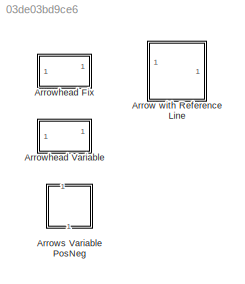
MODEL slx_03de03bd9ce6
KIND library
CONFIG SolverName = VariableStepAuto
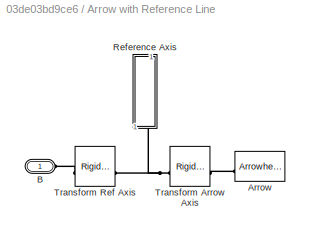
BLOCK [SubSystem] Arrow with Reference Line
BLOCK [Reference] Arrow with Reference Line/Arrow  REF=$bdroot/Arrowhead Fix
  SourceBlock = $bdroot/Arrowhead Fix
BLOCK [PMIOPort] Arrow with Reference Line/B
  Side = Left
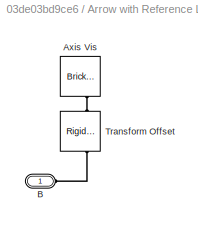
BLOCK [SubSystem] Arrow with Reference Line/Reference Axis
  NameLocation = right
BLOCK [Reference] Arrow with Reference Line/Reference Axis/Axis Vis  REF=sm_lib/Body Elements/Brick Solid
  NameLocation = left
  SourceBlock = sm_lib/Body Elements/Brick Solid
  SourceType = Brick Solid
BLOCK [PMIOPort] Arrow with Reference Line/Reference Axis/B
  Side = Left
BLOCK [Reference] Arrow with Reference Line/Reference Axis/Transform Offset  REF=sm_lib/Frames and
Transforms/Rigid
Transform
  NameLocation = left
  SourceBlock = sm_lib/Frames and\nTransforms/Rigid\nTransform
  SourceType = Rigid\nTransform
BLOCK [Reference] Arrow with Reference Line/Transform Arrow Axis  REF=sm_lib/Frames and
Transforms/Rigid
Transform
  SourceBlock = sm_lib/Frames and\nTransforms/Rigid\nTransform
  SourceType = Rigid\nTransform
BLOCK [Reference] Arrow with Reference Line/Transform Ref Axis  REF=sm_lib/Frames and
Transforms/Rigid
Transform
  SourceBlock = sm_lib/Frames and\nTransforms/Rigid\nTransform
  SourceType = Rigid\nTransform
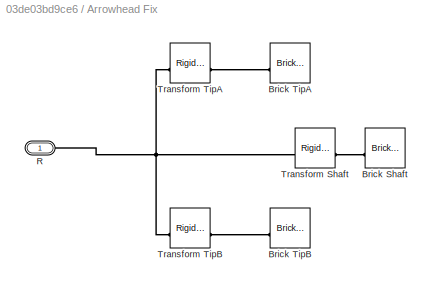
BLOCK [SubSystem] Arrowhead Fix
BLOCK [Reference] Arrowhead Fix/Brick Shaft  REF=sm_lib/Body Elements/Brick Solid
  SourceBlock = sm_lib/Body Elements/Brick Solid
  SourceType = Brick Solid
BLOCK [Reference] Arrowhead Fix/Brick TipA  REF=sm_lib/Body Elements/Brick Solid
  SourceBlock = sm_lib/Body Elements/Brick Solid
  SourceType = Brick Solid
BLOCK [Reference] Arrowhead Fix/Brick TipB  REF=sm_lib/Body Elements/Brick Solid
  SourceBlock = sm_lib/Body Elements/Brick Solid
  SourceType = Brick Solid
BLOCK [PMIOPort] Arrowhead Fix/R
  Side = Right
BLOCK [Reference] Arrowhead Fix/Transform Shaft  REF=sm_lib/Frames and
Transforms/Rigid
Transform
  SourceBlock = sm_lib/Frames and\nTransforms/Rigid\nTransform
  SourceType = Rigid\nTransform
BLOCK [Reference] Arrowhead Fix/Transform TipA  REF=sm_lib/Frames and
Transforms/Rigid
Transform
  SourceBlock = sm_lib/Frames and\nTransforms/Rigid\nTransform
  SourceType = Rigid\nTransform
BLOCK [Reference] Arrowhead Fix/Transform TipB  REF=sm_lib/Frames and
Transforms/Rigid
Transform
  SourceBlock = sm_lib/Frames and\nTransforms/Rigid\nTransform
  SourceType = Rigid\nTransform
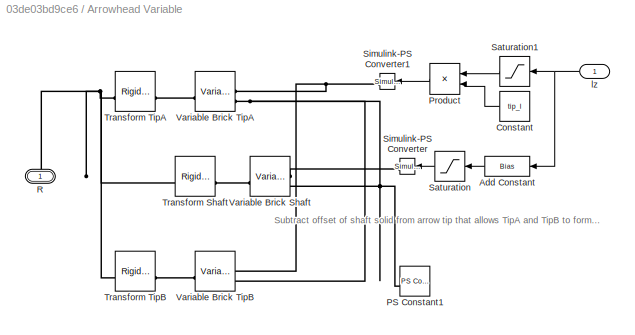
BLOCK [SubSystem] Arrowhead Variable
BLOCK [Bias] Arrowhead Variable/Add Constant
  Bias = -(line_width/2)/tand(tip_a/2)
  SaturateOnIntegerOverflow = off
BLOCK [Constant] Arrowhead Variable/Constant
  Value = tip_l
BLOCK [Reference] Arrowhead Variable/PS Constant1  REF=fl_lib/Physical Signals/Sources/PS Constant
  SourceBlock = fl_lib/Physical Signals/Sources/PS Constant
  SourceType = PS Constant
BLOCK [Product] Arrowhead Variable/Product
BLOCK [PMIOPort] Arrowhead Variable/R
  Side = Right
BLOCK [Saturate] Arrowhead Variable/Saturation
  LowerLimit = 1e-3
  NameLocation = top
  UpperLimit = Inf
  ZeroCross = off
BLOCK [Saturate] Arrowhead Variable/Saturation1
  LowerLimit = 1e-3
  NameLocation = top
  UpperLimit = 1
  ZeroCross = off
BLOCK [Reference] Arrowhead Variable/Simulink-PS Converter  REF=nesl_utility/Simulink-PS
Converter
  SourceBlock = nesl_utility/Simulink-PS\nConverter
  SourceType = Simulink-PS\nConverter
BLOCK [Reference] Arrowhead Variable/Simulink-PS Converter1  REF=nesl_utility/Simulink-PS
Converter
  SourceBlock = nesl_utility/Simulink-PS\nConverter
  SourceType = Simulink-PS\nConverter
BLOCK [Reference] Arrowhead Variable/Transform Shaft  REF=sm_lib/Frames and
Transforms/Rigid
Transform
  SourceBlock = sm_lib/Frames and\nTransforms/Rigid\nTransform
  SourceType = Rigid\nTransform
BLOCK [Reference] Arrowhead Variable/Transform TipA  REF=sm_lib/Frames and
Transforms/Rigid
Transform
  SourceBlock = sm_lib/Frames and\nTransforms/Rigid\nTransform
  SourceType = Rigid\nTransform
BLOCK [Reference] Arrowhead Variable/Transform TipB  REF=sm_lib/Frames and
Transforms/Rigid
Transform
  SourceBlock = sm_lib/Frames and\nTransforms/Rigid\nTransform
  SourceType = Rigid\nTransform
BLOCK [Reference] Arrowhead Variable/Variable Brick Shaft  REF=sm_lib/Body Elements/Variable Mass/Variable
Brick Solid
  SourceBlock = sm_lib/Body Elements/Variable Mass/Variable\nBrick Solid
  SourceType = Variable\nBrick Solid
BLOCK [Reference] Arrowhead Variable/Variable Brick TipA  REF=sm_lib/Body Elements/Variable Mass/Variable
Brick Solid
  SourceBlock = sm_lib/Body Elements/Variable Mass/Variable\nBrick Solid
  SourceType = Variable\nBrick Solid
BLOCK [Reference] Arrowhead Variable/Variable Brick TipB  REF=sm_lib/Body Elements/Variable Mass/Variable
Brick Solid
  SourceBlock = sm_lib/Body Elements/Variable Mass/Variable\nBrick Solid
  SourceType = Variable\nBrick Solid
BLOCK [Inport] Arrowhead Variable/lz
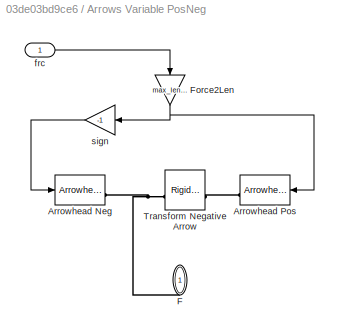
BLOCK [SubSystem] Arrows Variable PosNeg
  NameLocation = right
BLOCK [Reference] Arrows Variable PosNeg/Arrowhead Neg  REF=$bdroot/Arrowhead Variable
  SourceBlock = $bdroot/Arrowhead Variable
BLOCK [Reference] Arrows Variable PosNeg/Arrowhead Pos  REF=$bdroot/Arrowhead Variable
  SourceBlock = $bdroot/Arrowhead Variable
BLOCK [PMIOPort] Arrows Variable PosNeg/F
  NameLocation = right
  Side = Right
BLOCK [Gain] Arrows Variable PosNeg/Force2Len
  Gain = max_length/max_force
  NameLocation = left
BLOCK [Reference] Arrows Variable PosNeg/Transform Negative Arrow  REF=sm_lib/Frames and
Transforms/Rigid
Transform
  SourceBlock = sm_lib/Frames and\nTransforms/Rigid\nTransform
  SourceType = Rigid\nTransform
BLOCK [Inport] Arrows Variable PosNeg/frc
BLOCK [Gain] Arrows Variable PosNeg/sign
  Gain = -1
ANNOTATION Arrowhead Variable: Subtract offset of shaft solid from arrow tip that allows TipA and TipB to form a sharp point.
LINE Arrowhead Variable/Add Constant:1 -> Arrowhead Variable/Saturation:1
LINE Arrowhead Variable/Constant:1 -> Arrowhead Variable/Product:2
LINE Arrowhead Variable/Product:1 -> Arrowhead Variable/Simulink-PS Converter1:1
LINE Arrowhead Variable/Saturation1:1 -> Arrowhead Variable/Product:1
LINE Arrowhead Variable/Saturation:1 -> Arrowhead Variable/Simulink-PS Converter:1
NET Arrowhead Variable/lz:1 -> Arrowhead Variable/Add Constant:1, Arrowhead Variable/Saturation1:1
NET Arrows Variable PosNeg/Force2Len:1 -> Arrows Variable PosNeg/Arrowhead Pos:1, Arrows Variable PosNeg/sign:1
LINE Arrows Variable PosNeg/frc:1 -> Arrows Variable PosNeg/Force2Len:1
LINE Arrows Variable PosNeg/sign:1 -> Arrows Variable PosNeg/Arrowhead Neg:1
PLINE Arrow with Reference Line/Arrow:RConn1 -- Arrow with Reference Line/Transform Arrow Axis:RConn1
PLINE Arrow with Reference Line/B:RConn1 -- Arrow with Reference Line/Transform Ref Axis:LConn1
PLINE Arrow with Reference Line/Reference Axis/Axis Vis:RConn1 -- Arrow with Reference Line/Reference Axis/Transform Offset:RConn1
PLINE Arrow with Reference Line/Reference Axis/B:RConn1 -- Arrow with Reference Line/Reference Axis/Transform Offset:LConn1
PNET net1: Arrow with Reference Line/Reference Axis:LConn1 -- Arrow with Reference Line/Transform Arrow Axis:LConn1 -- Arrow with Reference Line/Transform Ref Axis:RConn1
PLINE Arrowhead Fix/Brick Shaft:LConn1 -- Arrowhead Fix/Transform Shaft:RConn1
PLINE Arrowhead Fix/Brick TipA:LConn1 -- Arrowhead Fix/Transform TipA:RConn1
PLINE Arrowhead Fix/Brick TipB:LConn1 -- Arrowhead Fix/Transform TipB:RConn1
PNET net2: Arrowhead Fix/R:RConn1 -- Arrowhead Fix/Transform Shaft:LConn1 -- Arrowhead Fix/Transform TipA:LConn1 -- Arrowhead Fix/Transform TipB:LConn1
PNET net3: Arrowhead Variable/PS Constant1:RConn1 -- Arrowhead Variable/Variable Brick Shaft:LConn2 -- Arrowhead Variable/Variable Brick TipA:LConn2 -- Arrowhead Variable/Variable Brick TipB:LConn2
PNET net4: Arrowhead Variable/R:RConn1 -- Arrowhead Variable/Transform Shaft:LConn1 -- Arrowhead Variable/Transform TipA:LConn1 -- Arrowhead Variable/Transform TipB:LConn1
PNET net5: Arrowhead Variable/Simulink-PS Converter1:RConn1 -- Arrowhead Variable/Variable Brick TipA:LConn1 -- Arrowhead Variable/Variable Brick TipB:LConn1
PLINE Arrowhead Variable/Simulink-PS Converter:RConn1 -- Arrowhead Variable/Variable Brick Shaft:LConn1
PLINE Arrowhead Variable/Transform Shaft:RConn1 -- Arrowhead Variable/Variable Brick Shaft:RConn1
PLINE Arrowhead Variable/Transform TipA:RConn1 -- Arrowhead Variable/Variable Brick TipA:RConn1
PLINE Arrowhead Variable/Transform TipB:RConn1 -- Arrowhead Variable/Variable Brick TipB:RConn1
PNET net6: Arrows Variable PosNeg/Arrowhead Neg:RConn1 -- Arrows Variable PosNeg/F:RConn1 -- Arrows Variable PosNeg/Transform Negative Arrow:LConn1
PLINE Arrows Variable PosNeg/Arrowhead Pos:RConn1 -- Arrows Variable PosNeg/Transform Negative Arrow:RConn1
note: NET lines group one-source signal fan-out (src -> all destinations, sorted); 1:1 wires keep LINE; PNET lines group multi-terminal physical nets as a canonical sorted terminal list (undirected conserving connections); 2-terminal nets keep the pairwise PLINE form
